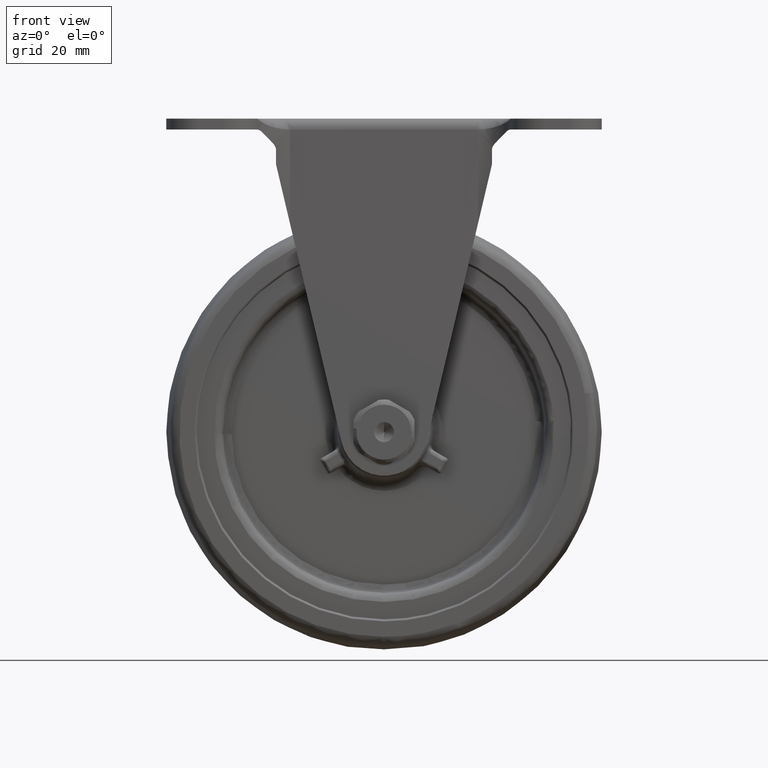
[diagram: clean part render]
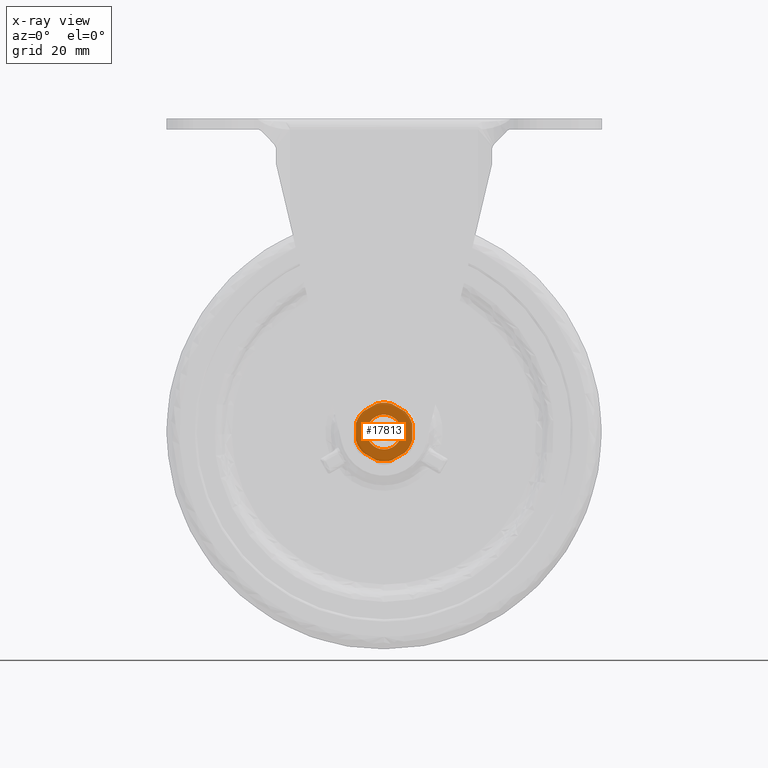
[diagram: x-ray — body ghosted, one internal face saturated and labeled with its STEP entity id]
A machine part, front view, then the same camera in x-ray: the body is ghosted and one INTERNAL B-rep face — a face not visible from any outside direction — is saturated and labeled: STEP entity #17813.
In plain terms, the highlighted face is a freeform B-spline surface patch.
Its self-contained STEP definition (entity closure, byte-faithful):
#14290=CARTESIAN_POINT('',(3.972038105373624,18.499985000000049,0.472136939307874));
#14291=VERTEX_POINT('',#14290);
#14292=CARTESIAN_POINT('',(0.0,18.499985000000049,-3.999999999999888));
#14293=VERTEX_POINT('',#14292);
#14294=CARTESIAN_POINT('',(3.972038105373624,18.499985000000045,0.472136939307874));
#14295=CARTESIAN_POINT('',(3.999999999999885,18.499985000000045,0.236896479295685));
#14296=CARTESIAN_POINT('',(3.999999999999885,18.499985000000049,-3.634634E-015));
#14297=CARTESIAN_POINT('',(3.999999999999885,18.499985000000052,-3.999999999999888));
#14298=CARTESIAN_POINT('',(0.0,18.499985000000049,-3.999999999999888));
#14306=(BOUNDED_CURVE()B_SPLINE_CURVE(2,(#14294,#14295,#14296,#14297,#14298),.UNSPECIFIED.,.F.,.U.)B_SPLINE_CURVE_WITH_KNOTS((3,2,3),(0.229562473457706,0.250000000000000,0.500000000000000),.UNSPECIFIED.)CURVE()GEOMETRIC_REPRESENTATION_ITEM()RATIONAL_B_SPLINE_CURVE((0.956026754074324,0.976055948265768,1.0,0.707106781186548,1.0))REPRESENTATION_ITEM(''));
#14307=EDGE_CURVE('',#14291,#14293,#14306,.T.);
#14348=CARTESIAN_POINT('',(-3.992539193624952,18.499985000000049,-0.244194159159697));
#14349=VERTEX_POINT('',#14348);
#14355=CARTESIAN_POINT('',(0.0,18.499985000000049,-3.999999999999888));
#14356=CARTESIAN_POINT('',(-3.762824265695950,18.499985000000052,-3.999999999999889));
#14357=CARTESIAN_POINT('',(-3.992539193624953,18.499985000000056,-0.244194159159697));
#14365=(BOUNDED_CURVE()B_SPLINE_CURVE(2,(#14355,#14356,#14357),.UNSPECIFIED.,.F.,.U.)B_SPLINE_CURVE_WITH_KNOTS((3,3),(0.500000000000000,0.739332962153782),.UNSPECIFIED.)CURVE()GEOMETRIC_REPRESENTATION_ITEM()RATIONAL_B_SPLINE_CURVE((1.0,0.719603993386482,0.976072041484202))REPRESENTATION_ITEM(''));
#14366=EDGE_CURVE('',#14293,#14349,#14365,.T.);
#14389=CARTESIAN_POINT('',(0.0,18.499985000000049,3.999999999999881));
#14390=VERTEX_POINT('',#14389);
#14391=CARTESIAN_POINT('',(0.0,18.499985000000049,3.999999999999881));
#14392=CARTESIAN_POINT('',(3.552698102578839,18.499985000000045,3.999999999999881));
#14393=CARTESIAN_POINT('',(3.972038105373624,18.499985000000045,0.472136939307874));
#14401=(BOUNDED_CURVE()B_SPLINE_CURVE(2,(#14391,#14392,#14393),.UNSPECIFIED.,.F.,.U.)B_SPLINE_CURVE_WITH_KNOTS((3,3),(0.0,0.229562473457706),.UNSPECIFIED.)CURVE()GEOMETRIC_REPRESENTATION_ITEM()RATIONAL_B_SPLINE_CURVE((1.0,0.731050832920779,0.956026754074324))REPRESENTATION_ITEM(''));
#14402=EDGE_CURVE('',#14390,#14291,#14401,.T.);
#14404=CARTESIAN_POINT('',(-3.992539193624952,18.499985000000052,-0.244194159159697));
#14405=CARTESIAN_POINT('',(-3.999999999999885,18.499985000000052,-0.122211054217489));
#14406=CARTESIAN_POINT('',(-3.999999999999885,18.499985000000049,-3.634634E-015));
#14407=CARTESIAN_POINT('',(-3.999999999999885,18.499985000000052,3.999999999999881));
#14408=CARTESIAN_POINT('',(0.0,18.499985000000049,3.999999999999881));
#14416=(BOUNDED_CURVE()B_SPLINE_CURVE(2,(#14404,#14405,#14406,#14407,#14408),.UNSPECIFIED.,.F.,.U.)B_SPLINE_CURVE_WITH_KNOTS((3,2,3),(0.739332962153781,0.750000000000000,1.0),.UNSPECIFIED.)CURVE()GEOMETRIC_REPRESENTATION_ITEM()RATIONAL_B_SPLINE_CURVE((0.976072041484201,0.987502787800065,1.0,0.707106781186548,1.0))REPRESENTATION_ITEM(''));
#14417=EDGE_CURVE('',#14349,#14390,#14416,.T.);
#17050=CARTESIAN_POINT('',(-4.826189219801290,18.499985000000049,4.719152528778491));
#17051=VERTEX_POINT('',#17050);
#17052=CARTESIAN_POINT('',(-1.673810436338195,18.499985000000049,6.539178969749030));
#17053=VERTEX_POINT('',#17052);
#17054=CARTESIAN_POINT('',(-4.826189219801290,18.499985000000049,4.719152528778491));
#17055=CARTESIAN_POINT('',(-1.673810436338195,18.499985000000049,6.539178969749030));
#17056=QUASI_UNIFORM_CURVE('',1,(#17054,#17055),.UNSPECIFIED.,.F.,.U.);
#17057=EDGE_CURVE('',#17051,#17053,#17056,.T.);
#17126=CARTESIAN_POINT('',(1.673807254439075,18.499985000000049,6.539179784207630));
#17127=VERTEX_POINT('',#17126);
#17128=CARTESIAN_POINT('',(4.826191639094300,18.499985000000049,4.719150054611411));
#17129=VERTEX_POINT('',#17128);
#17130=CARTESIAN_POINT('',(1.673807254439075,18.499985000000049,6.539179784207630));
#17131=CARTESIAN_POINT('',(4.826191639094300,18.499985000000049,4.719150054611411));
#17132=QUASI_UNIFORM_CURVE('',1,(#17130,#17131),.UNSPECIFIED.,.F.,.U.);
#17133=EDGE_CURVE('',#17127,#17129,#17132,.T.);
#17203=CARTESIAN_POINT('',(6.500000000000110,18.499985000000049,1.820028289670555));
#17204=VERTEX_POINT('',#17203);
#17205=CARTESIAN_POINT('',(6.500000000000110,18.499985000000049,-1.820028289670565));
#17206=VERTEX_POINT('',#17205);
#17207=CARTESIAN_POINT('',(6.500000000000110,18.499985000000049,1.820028289670555));
#17208=CARTESIAN_POINT('',(6.500000000000110,18.499985000000049,-1.820028289670565));
#17209=QUASI_UNIFORM_CURVE('',1,(#17207,#17208),.UNSPECIFIED.,.F.,.U.);
#17210=EDGE_CURVE('',#17204,#17206,#17209,.T.);
#17289=CARTESIAN_POINT('',(4.826191639094311,18.499985000000049,-4.719150054611400));
#17290=VERTEX_POINT('',#17289);
#17291=CARTESIAN_POINT('',(1.673807254439055,18.499985000000049,-6.539179784207641));
#17292=VERTEX_POINT('',#17291);
#17293=CARTESIAN_POINT('',(4.826191639094311,18.499985000000049,-4.719150054611400));
#17294=CARTESIAN_POINT('',(1.673807254439055,18.499985000000049,-6.539179784207641));
#17295=QUASI_UNIFORM_CURVE('',1,(#17293,#17294),.UNSPECIFIED.,.F.,.U.);
#17296=EDGE_CURVE('',#17290,#17292,#17295,.T.);
#17365=CARTESIAN_POINT('',(-1.673810436338200,18.499985000000049,-6.539178969749030));
#17366=VERTEX_POINT('',#17365);
#17367=CARTESIAN_POINT('',(-4.826189219801259,18.499985000000049,-4.719152528778531));
#17368=VERTEX_POINT('',#17367);
#17369=CARTESIAN_POINT('',(-1.673810436338200,18.499985000000049,-6.539178969749030));
#17370=CARTESIAN_POINT('',(-4.826189219801259,18.499985000000049,-4.719152528778531));
#17371=QUASI_UNIFORM_CURVE('',1,(#17369,#17370),.UNSPECIFIED.,.F.,.U.);
#17372=EDGE_CURVE('',#17366,#17368,#17371,.T.);
#17442=CARTESIAN_POINT('',(-6.499999999999890,18.499985000000049,-1.820028289671375));
#17443=VERTEX_POINT('',#17442);
#17444=CARTESIAN_POINT('',(-6.499999999999890,18.499985000000049,1.820028289671370));
#17445=VERTEX_POINT('',#17444);
#17446=CARTESIAN_POINT('',(-6.499999999999890,18.499985000000049,-1.820028289671375));
#17447=CARTESIAN_POINT('',(-6.499999999999890,18.499985000000049,1.820028289671370));
#17448=QUASI_UNIFORM_CURVE('',1,(#17446,#17447),.UNSPECIFIED.,.F.,.U.);
#17449=EDGE_CURVE('',#17443,#17445,#17448,.T.);
#17711=CARTESIAN_POINT('',(6.500000000000117,18.499985000000049,-1.820028289670566));
#17712=CARTESIAN_POINT('',(6.034134350227848,18.499985000000049,-3.483808320291916));
#17713=CARTESIAN_POINT('',(4.826191639094315,18.499985000000049,-4.719150054611407));
#17721=(BOUNDED_CURVE()B_SPLINE_CURVE(2,(#17711,#17712,#17713),.UNSPECIFIED.,.F.,.U.)CURVE()GEOMETRIC_REPRESENTATION_ITEM()QUASI_UNIFORM_CURVE()RATIONAL_B_SPLINE_CURVE((1.0,0.968767291312847,1.0))REPRESENTATION_ITEM(''));
#17722=EDGE_CURVE('',#17206,#17290,#17721,.T.);
#17728=CARTESIAN_POINT('',(-7.149349974803367,18.499985000000049,-7.424325041276212));
#17729=CARTESIAN_POINT('',(-7.149349974803367,18.499985000000049,7.424324558478569));
#17730=CARTESIAN_POINT('',(7.149350323490759,18.499985000000049,-7.424325041276212));
#17731=CARTESIAN_POINT('',(7.149350323490760,18.499985000000049,7.424324558478569));
#17732=B_SPLINE_SURFACE_WITH_KNOTS('',1,1,((#17728,#17730),(#17729,#17731)),.UNSPECIFIED.,.F.,.F.,.U.,(2,2),(2,2),(0.0,14.848649599754779),(0.0,14.298700298294129),.UNSPECIFIED.);
#17733=CARTESIAN_POINT('',(-1.673810436338194,18.499985000000049,6.539178969749029));
#17734=CARTESIAN_POINT('',(-0.000001695186493,18.499985000000052,6.967617853641717));
#17735=CARTESIAN_POINT('',(1.673807254439076,18.499985000000049,6.539179784207630));
#17743=(BOUNDED_CURVE()B_SPLINE_CURVE(2,(#17733,#17734,#17735),.UNSPECIFIED.,.F.,.U.)CURVE()GEOMETRIC_REPRESENTATION_ITEM()QUASI_UNIFORM_CURVE()RATIONAL_B_SPLINE_CURVE((1.0,0.968767283477982,1.0))REPRESENTATION_ITEM(''));
#17744=EDGE_CURVE('',#17053,#17127,#17743,.T.);
#17745=ORIENTED_EDGE('',*,*,#17744,.F.);
#17746=ORIENTED_EDGE('',*,*,#17057,.F.);
#17747=CARTESIAN_POINT('',(-6.499999999999892,18.499985000000049,1.820028289671368));
#17748=CARTESIAN_POINT('',(-6.034133853138929,18.499985000000049,3.483810095581084));
#17749=CARTESIAN_POINT('',(-4.826189219801294,18.499985000000049,4.719152528778491));
#17757=(BOUNDED_CURVE()B_SPLINE_CURVE(2,(#17747,#17748,#17749),.UNSPECIFIED.,.F.,.U.)CURVE()GEOMETRIC_REPRESENTATION_ITEM()QUASI_UNIFORM_CURVE()RATIONAL_B_SPLINE_CURVE((1.0,0.968767227750971,1.0))REPRESENTATION_ITEM(''));
#17758=EDGE_CURVE('',#17445,#17051,#17757,.T.);
#17759=ORIENTED_EDGE('',*,*,#17758,.F.);
#17760=ORIENTED_EDGE('',*,*,#17449,.F.);
#17761=CARTESIAN_POINT('',(-4.826189219801259,18.499985000000049,-4.719152528778534));
#17762=CARTESIAN_POINT('',(-6.034133853138919,18.499985000000045,-3.483810095581120));
#17763=CARTESIAN_POINT('',(-6.499999999999891,18.499985000000049,-1.820028289671378));
#17771=(BOUNDED_CURVE()B_SPLINE_CURVE(2,(#17761,#17762,#17763),.UNSPECIFIED.,.F.,.U.)CURVE()GEOMETRIC_REPRESENTATION_ITEM()QUASI_UNIFORM_CURVE()RATIONAL_B_SPLINE_CURVE((1.0,0.968767227750970,1.0))REPRESENTATION_ITEM(''));
#17772=EDGE_CURVE('',#17368,#17443,#17771,.T.);
#17773=ORIENTED_EDGE('',*,*,#17772,.F.);
#17774=ORIENTED_EDGE('',*,*,#17372,.F.);
#17775=CARTESIAN_POINT('',(1.673807254439055,18.499985000000049,-6.539179784207643));
#17776=CARTESIAN_POINT('',(-0.000001695186509,18.499985000000049,-6.967617853641722));
#17777=CARTESIAN_POINT('',(-1.673810436338200,18.499985000000049,-6.539178969749036));
#17785=(BOUNDED_CURVE()B_SPLINE_CURVE(2,(#17775,#17776,#17777),.UNSPECIFIED.,.F.,.U.)CURVE()GEOMETRIC_REPRESENTATION_ITEM()QUASI_UNIFORM_CURVE()RATIONAL_B_SPLINE_CURVE((1.0,0.968767283477983,1.0))REPRESENTATION_ITEM(''));
#17786=EDGE_CURVE('',#17292,#17366,#17785,.T.);
#17787=ORIENTED_EDGE('',*,*,#17786,.F.);
#17788=ORIENTED_EDGE('',*,*,#17296,.F.);
#17789=ORIENTED_EDGE('',*,*,#17722,.F.);
#17790=ORIENTED_EDGE('',*,*,#17210,.F.);
#17791=CARTESIAN_POINT('',(4.826191639094303,18.499985000000049,4.719150054611413));
#17792=CARTESIAN_POINT('',(6.034134350227846,18.499985000000056,3.483808320291916));
#17793=CARTESIAN_POINT('',(6.500000000000118,18.499985000000049,1.820028289670557));
#17801=(BOUNDED_CURVE()B_SPLINE_CURVE(2,(#17791,#17792,#17793),.UNSPECIFIED.,.F.,.U.)CURVE()GEOMETRIC_REPRESENTATION_ITEM()QUASI_UNIFORM_CURVE()RATIONAL_B_SPLINE_CURVE((1.0,0.968767291312847,1.0))REPRESENTATION_ITEM(''));
#17802=EDGE_CURVE('',#17129,#17204,#17801,.T.);
#17803=ORIENTED_EDGE('',*,*,#17802,.F.);
#17804=ORIENTED_EDGE('',*,*,#17133,.F.);
#17805=EDGE_LOOP('',(#17745,#17746,#17759,#17760,#17773,#17774,#17787,#17788,#17789,#17790,#17803,#17804));
#17806=FACE_OUTER_BOUND('',#17805,.T.);
#17807=ORIENTED_EDGE('',*,*,#14366,.T.);
#17808=ORIENTED_EDGE('',*,*,#14417,.T.);
#17809=ORIENTED_EDGE('',*,*,#14402,.T.);
#17810=ORIENTED_EDGE('',*,*,#14307,.T.);
#17811=EDGE_LOOP('',(#17807,#17808,#17809,#17810));
#17812=FACE_BOUND('',#17811,.T.);
#17813=ADVANCED_FACE('',(#17806,#17812),#17732,.F.);